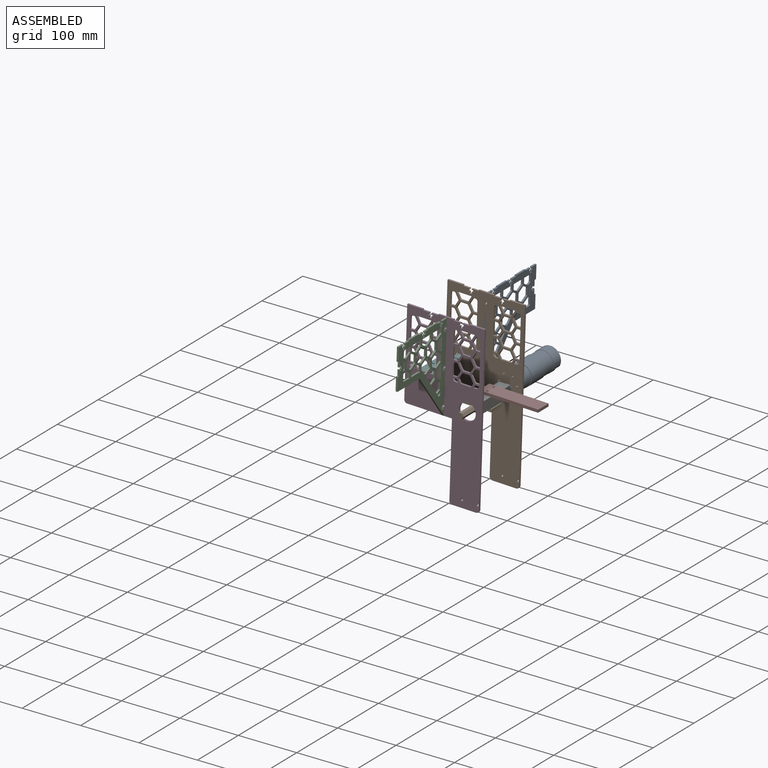
[diagram: assembled view]
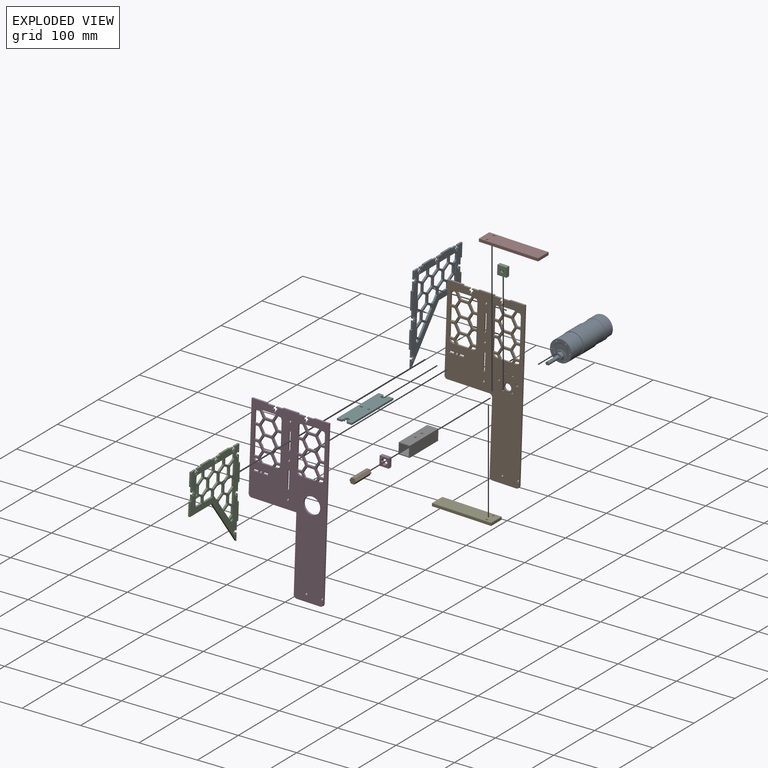
[diagram: exploded view]
GUIDED TOUR — MATED ASSEMBLY (Onshape document 5808713bf6ee2d1157445fb9, AutoMate assembly 5808713bf6ee2d1157445fb9_53c26528586d6e8c29167b55_e1d35214290db0263cb94514_default)

This assembly has 12 components, labeled P0..P11 below (a component is one placed occurrence of a part; the same part can appear more than once), held together by 11 mates. A mate is a constraint between two components; its type names the relative motion it leaves free:
  FASTENED — locks the two components together rigidly (no relative motion).
Axis/direction vectors are unit vectors and 'through' points are millimeter coordinates, both in the assembly's world frame.

MATES
  1. FASTENED "Fastened 5": P0 <-> P2, direction (-0.034, 0.000, -0.999) through (-109.58, 7.23, -27.28) mm
  2. FASTENED "Fastened 4": P4 <-> P6, direction (0.034, 0.000, 0.999) through (-109.82, -35.70, -34.30) mm
  3. FASTENED "Fastened 3": P7 <-> P6, direction (-0.034, 0.000, -0.999) through (-109.16, -35.70, -15.26) mm
  4. FASTENED "Fastened 10": P5 <-> P11, direction (0.034, 0.000, 0.999) through (-205.72, -83.37, 5.54) mm
  5. FASTENED "Fastened 7": P1 <-> P3, direction (0.000, 1.000, 0.000) through (-109.49, -62.62, -24.78) mm
  6. FASTENED "Fastened 2": P3 <-> P6, direction (0.000, -1.000, 0.000) through (-109.49, -62.62, -24.78) mm
  7. FASTENED "Fastened 8": P8 <-> P9, direction (-0.999, 0.000, 0.034) through (-149.49, 15.05, 64.98) mm
  8. FASTENED "Fastened 6": P0 <-> P9, direction (0.000, -1.000, 0.000) through (-109.49, 18.23, -24.78) mm
  9. FASTENED "Top Supp": P11 <-> P10, direction (0.000, 1.000, 0.000) through (-149.47, -80.20, 19.23) mm
  10. FASTENED "Fastened 9": P5 <-> P9, direction (-0.034, 0.000, -0.999) through (-205.83, 18.23, 2.36) mm
  11. FASTENED "Fastened 1": P2 <-> P6, direction (0.000, 1.000, 0.000) through (-109.49, 7.23, -24.78) mm

ASSEMBLY ORDER
  1. P9 — the base component [order verified]
  2. P2 [order verified]
  3. P4 [order verified]
  4. P6 [order verified]
  5. P5 [order verified]
  6. P8 [order verified]
  7. P0 [order verified]
  8. P3 [order verified]
  9. P1 [order verified]
  10. P7 [order verified]
  11. P11 [order verified]
  12. P10 [order verified]
(P0 verified with a relaxed clearance tolerance: the source model stores slight part interference there.)
Order-tag legend:
  [order verified] — this step's position reverses a verified removal order: the component was checked to insert without passing through the ones already placed.

Of the 12 components, 1 carries the full construction recipe — the FeatureScript program that regenerates the part's solid from scratch; the rest are supplied as boundary geometry only.
Each toured component is shown spotlighted twice — in the assembled view, then in the exploded view, where a leader line traces a displaced component back to its assembled socket (saturated green if recipe-attached, orange if geometry-only; every other component desaturated gray) — followed by its recipe or geometry summary and the mates that hold it.
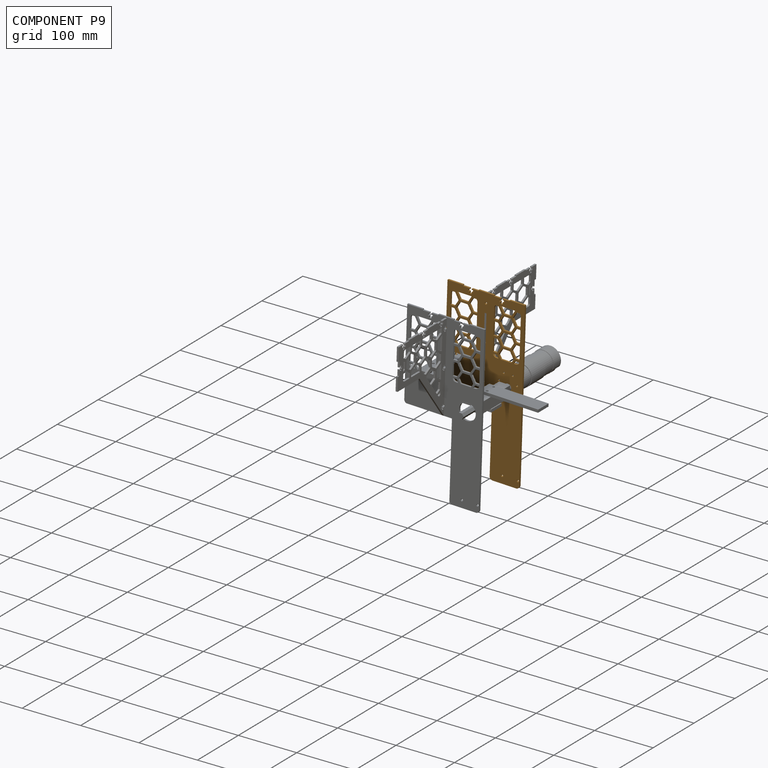
[diagram: component P9 — assembled]
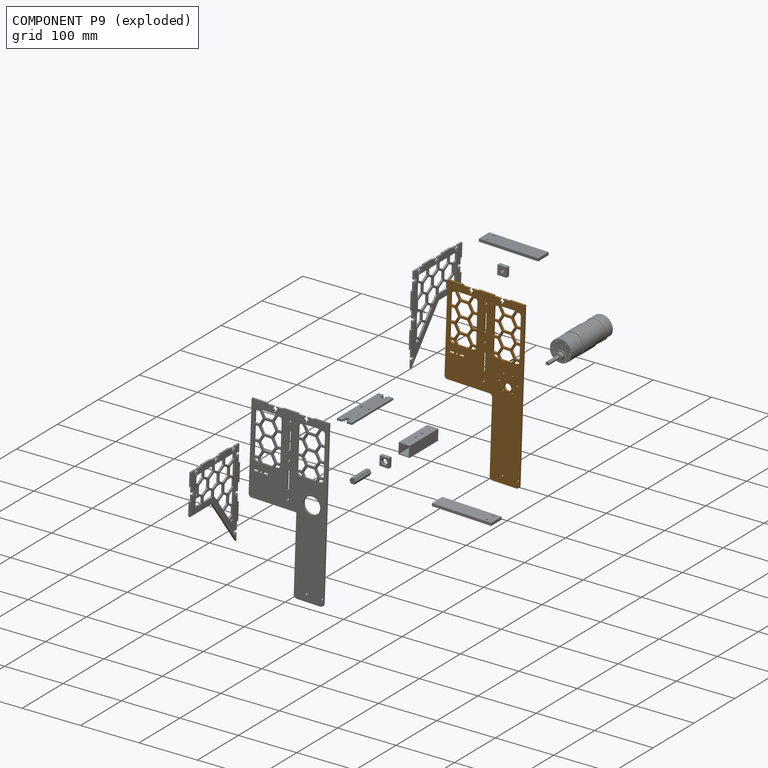
[diagram: component P9 — exploded]
COMPONENT P9 — geometry summary (no construction recipe available for this part):
  bounding box: 287.3 x 132.6 x 3.2 mm
  B-rep topology: 1 solid, 277 faces, 1650 edges
  volume: 66320 mm^3 (55% of its bounding box)
  symmetry: mirror-symmetric across its z mid-plane
Held by: FASTENED mate "Fastened 8" to P8; FASTENED mate "Fastened 6" to P0; FASTENED mate "Fastened 9" to P5.
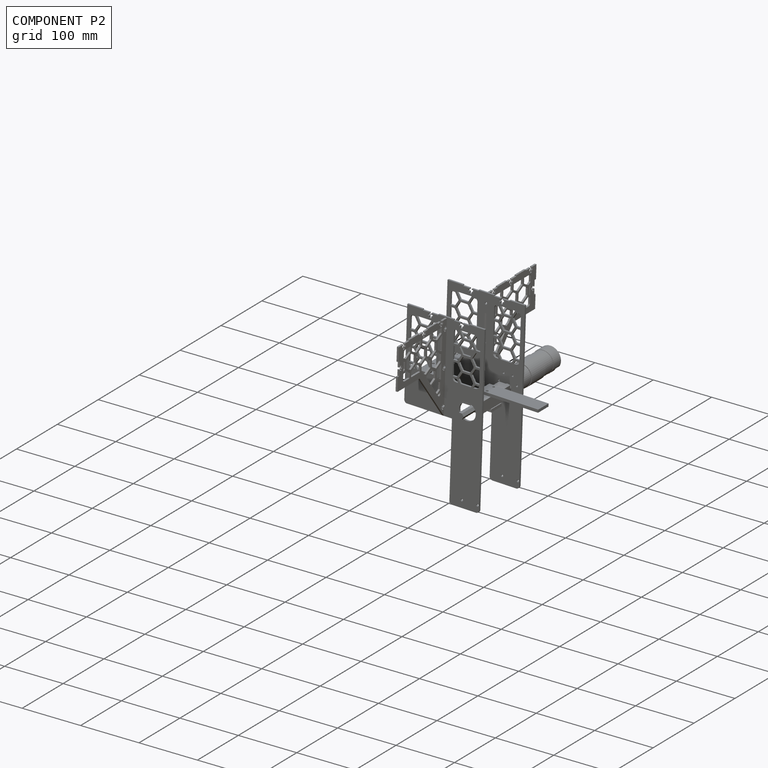
[diagram: component P2 — assembled]
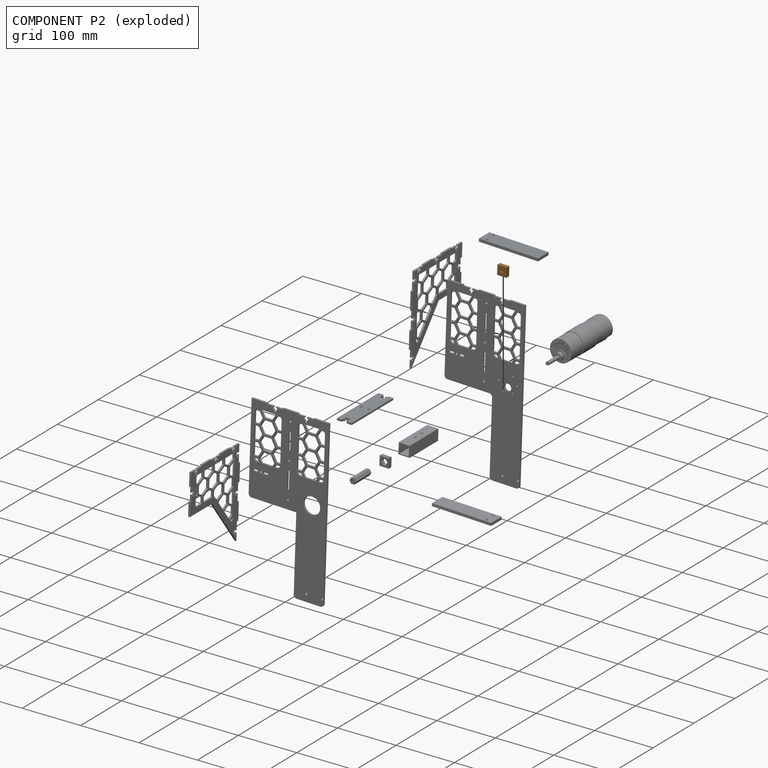
[diagram: component P2 — exploded]
COMPONENT P2 — geometry summary (no construction recipe available for this part):
  bounding box: 16.0 x 16.0 x 6.4 mm
  B-rep topology: 1 solid, 8 faces, 36 edges
  volume: 1448 mm^3 (89% of its bounding box)
  symmetry: 2-fold rotationally symmetric about the z axis; mirror-symmetric across its x mid-plane, y mid-plane
Held by: FASTENED mate "Fastened 5" to P0; FASTENED mate "Fastened 1" to P6.
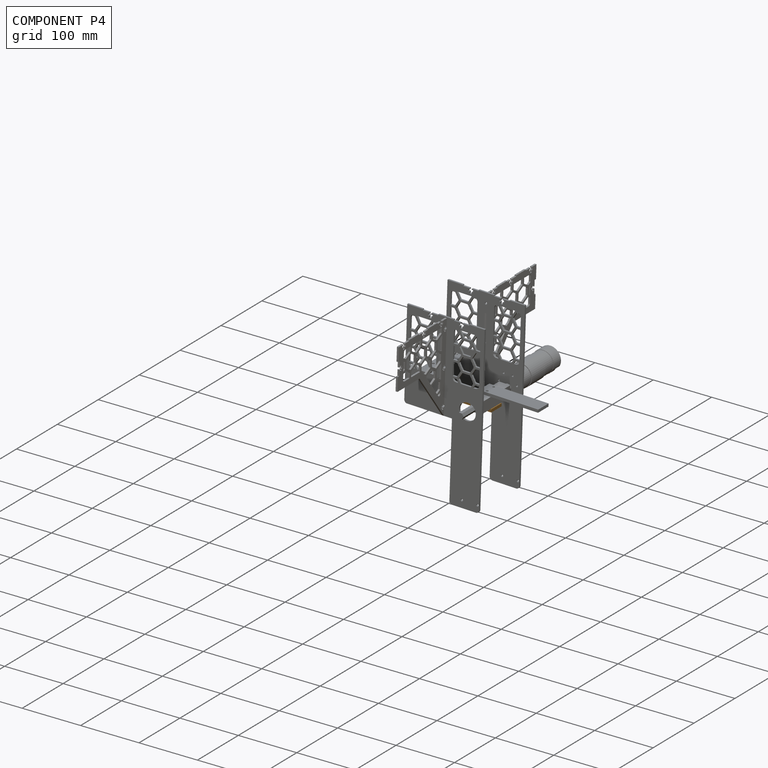
[diagram: component P4 — assembled]
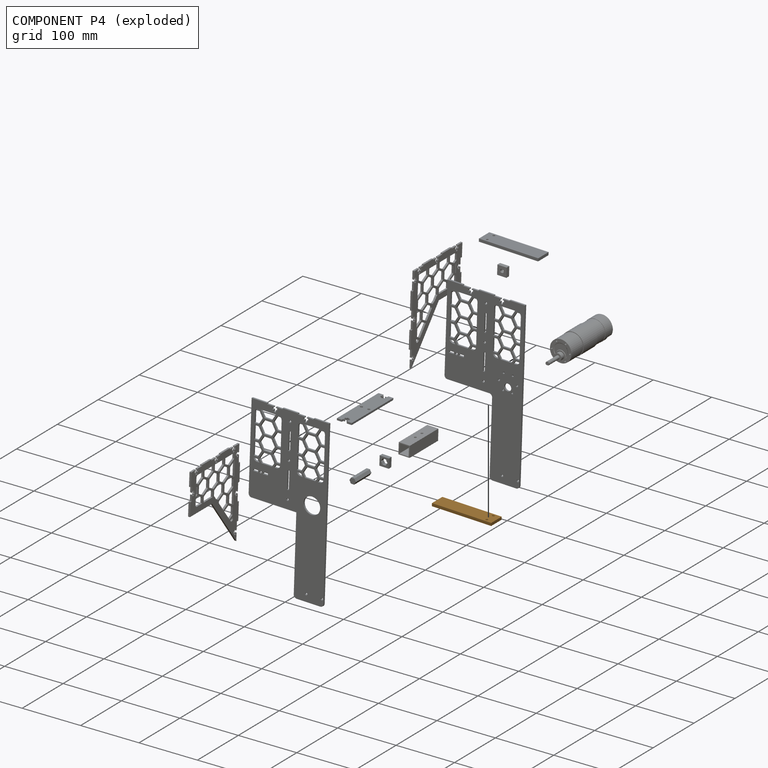
[diagram: component P4 — exploded]
COMPONENT P4 — geometry summary (no construction recipe available for this part):
  bounding box: 101.6 x 25.4 x 4.8 mm
  B-rep topology: 1 solid, 8 faces, 36 edges
  volume: 12350 mm^3 (99% of its bounding box)
  symmetry: 2-fold rotationally symmetric about the y axis; mirror-symmetric across its x mid-plane, z mid-plane
Held by: FASTENED mate "Fastened 4" to P6.
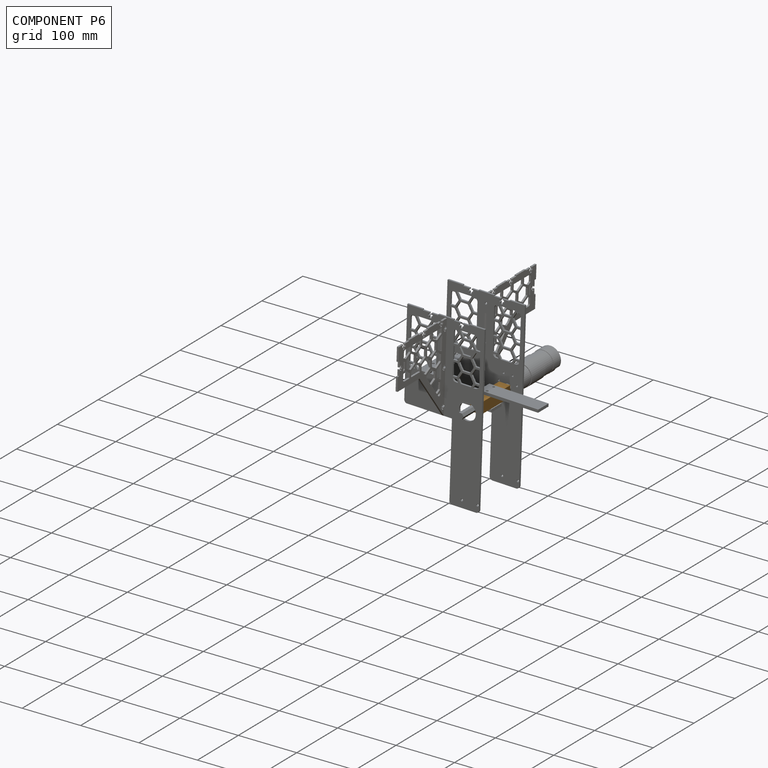
[diagram: component P6 — assembled]
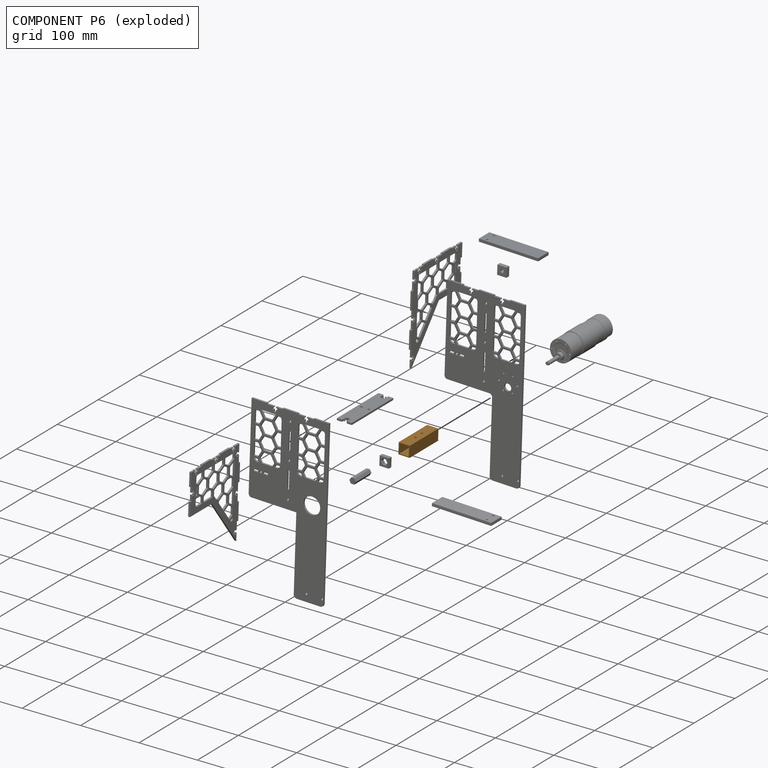
[diagram: component P6 — exploded]
COMPONENT P6 — geometry summary (no construction recipe available for this part):
  bounding box: 69.9 x 19.1 x 19.1 mm
  B-rep topology: 1 solid, 14 faces, 72 edges
  volume: 7453 mm^3 (29% of its bounding box)
  symmetry: 2-fold rotationally symmetric about the x axis; 2-fold rotationally symmetric about the y axis; 2-fold rotationally symmetric about the z axis; mirror-symmetric across its x mid-plane, y mid-plane, z mid-plane
Held by: FASTENED mate "Fastened 4" to P4; FASTENED mate "Fastened 3" to P7; FASTENED mate "Fastened 2" to P3; FASTENED mate "Fastened 1" to P2.
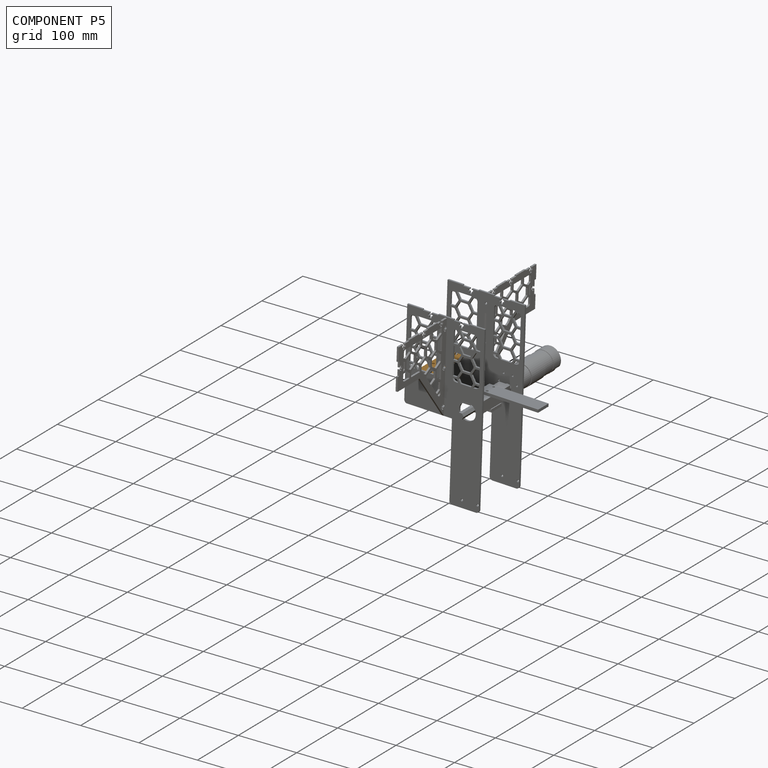
[diagram: component P5 — assembled]
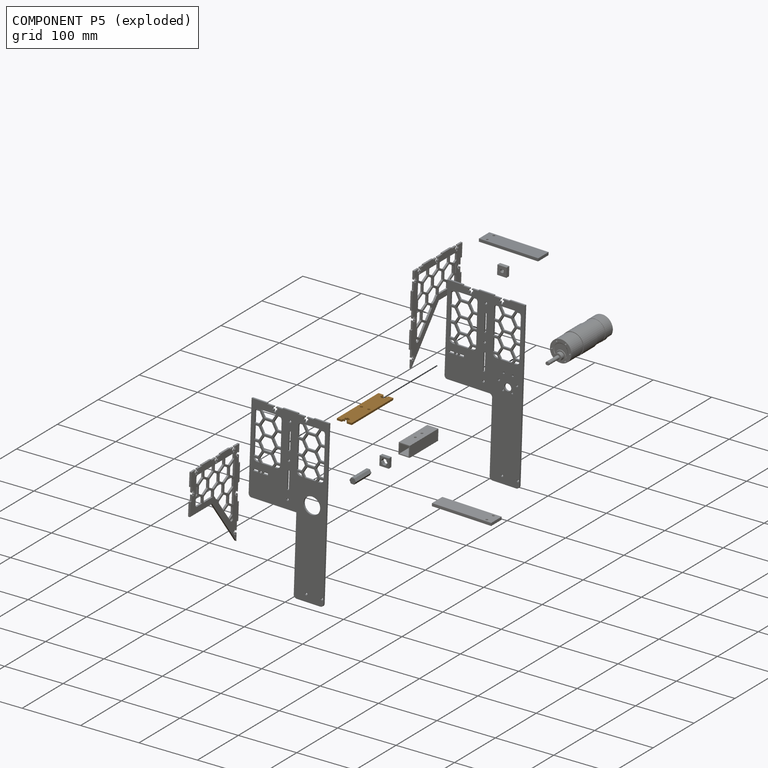
[diagram: component P5 — exploded]
COMPONENT P5 — geometry summary (no construction recipe available for this part):
  bounding box: 101.6 x 25.4 x 3.2 mm
  B-rep topology: 1 solid, 40 faces, 232 edges
  volume: 7673 mm^3 (94% of its bounding box)
  symmetry: 2-fold rotationally symmetric about the x axis; 2-fold rotationally symmetric about the y axis; 2-fold rotationally symmetric about the z axis; mirror-symmetric across its x mid-plane, y mid-plane, z mid-plane
Held by: FASTENED mate "Fastened 10" to P11; FASTENED mate "Fastened 9" to P9.
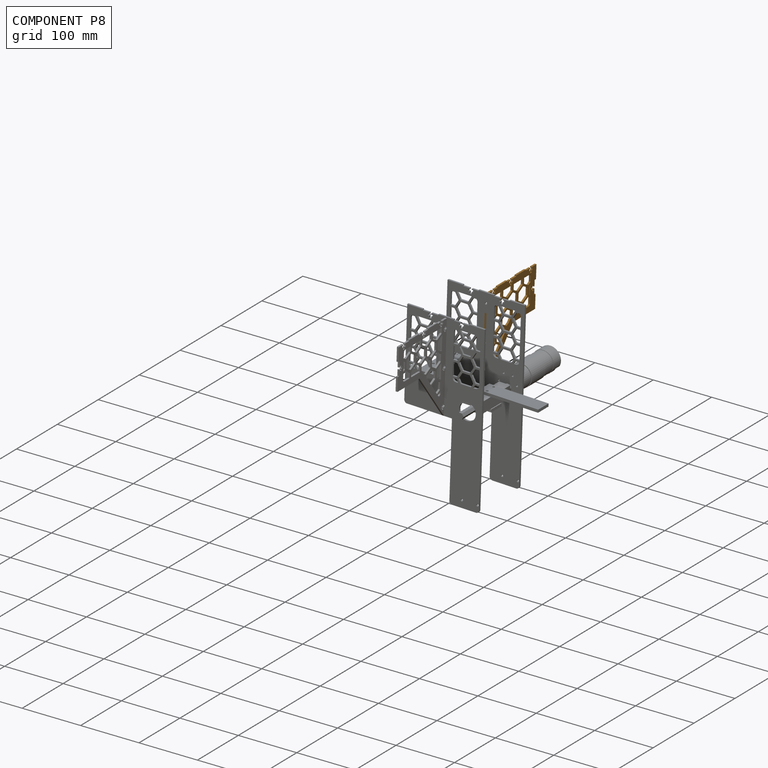
[diagram: component P8 — assembled]
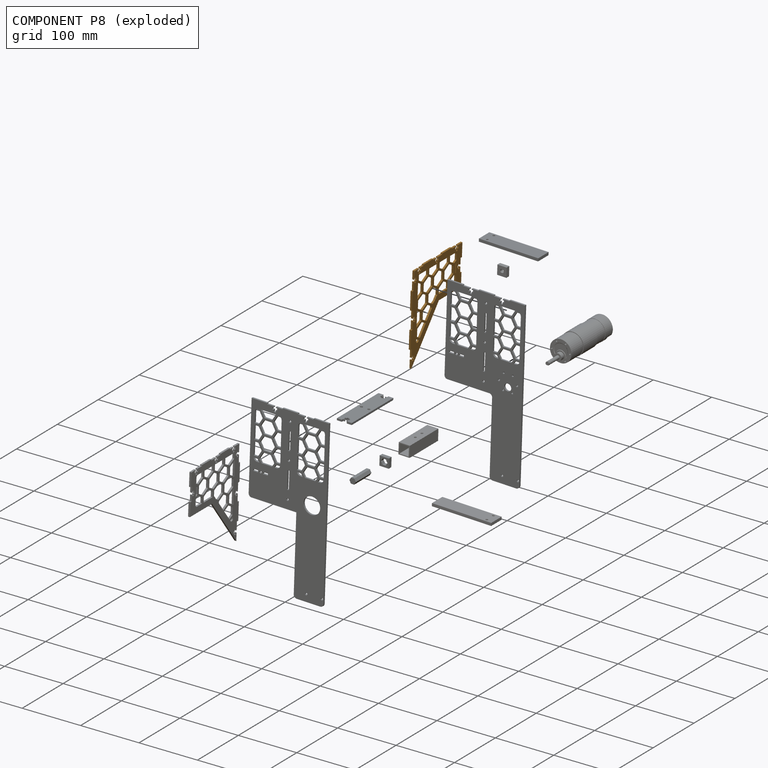
[diagram: component P8 — exploded]
COMPONENT P8 — geometry summary (no construction recipe available for this part):
  bounding box: 154.0 x 120.7 x 3.2 mm
  B-rep topology: 1 solid, 266 faces, 1584 edges
  volume: 19031 mm^3 (32% of its bounding box)
  symmetry: mirror-symmetric across its x mid-plane
Held by: FASTENED mate "Fastened 8" to P9.
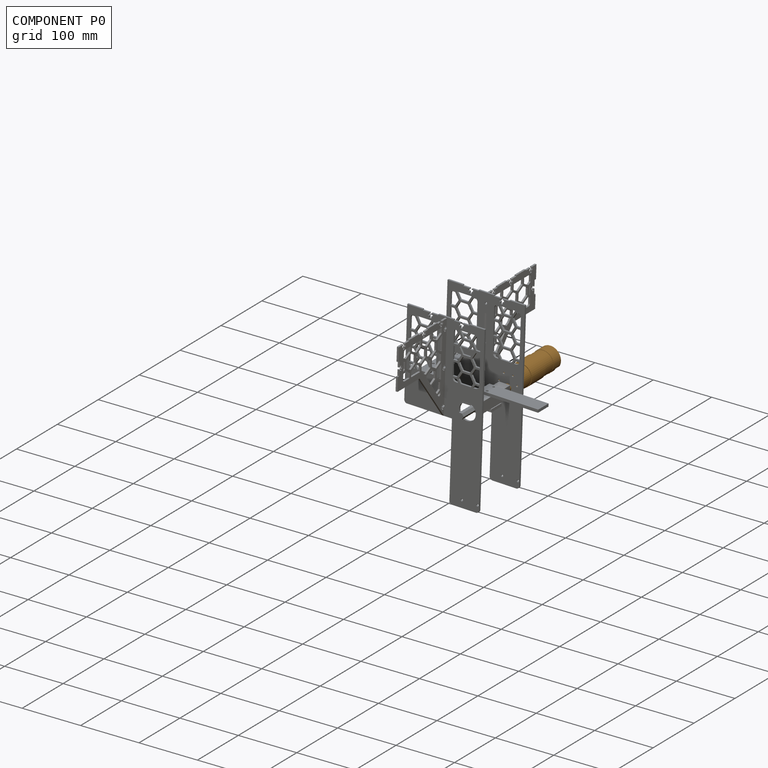
[diagram: component P0 — assembled]
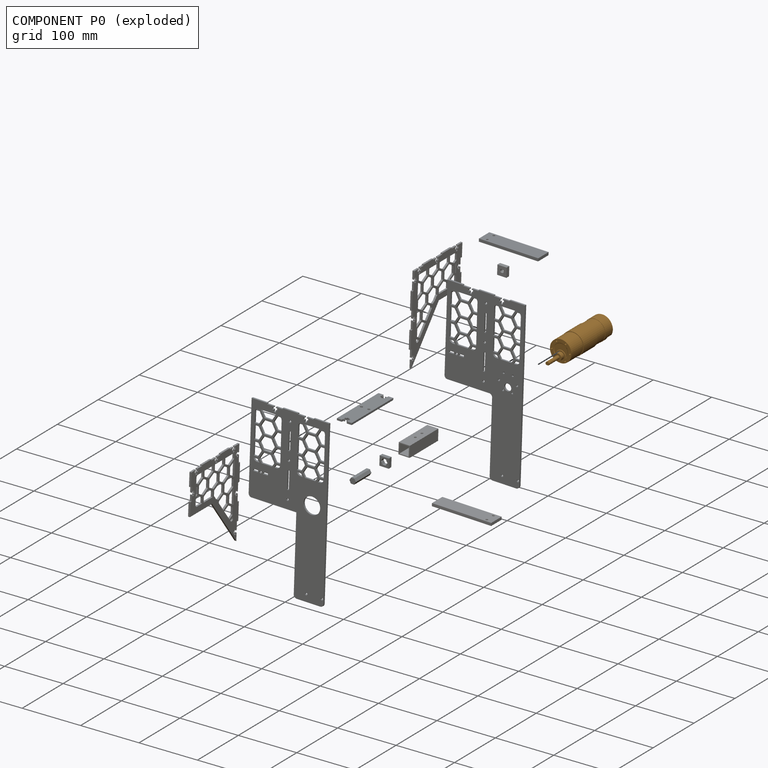
[diagram: component P0 — exploded]
COMPONENT P0 — geometry summary (no construction recipe available for this part):
  bounding box: 133.7 x 38.0 x 38.0 mm
  B-rep topology: 1 solid, 327 faces, 1706 edges
  volume: 108105 mm^3 (56% of its bounding box)
  symmetry: mirror-symmetric across its x mid-plane
Held by: FASTENED mate "Fastened 5" to P2; FASTENED mate "Fastened 6" to P9.
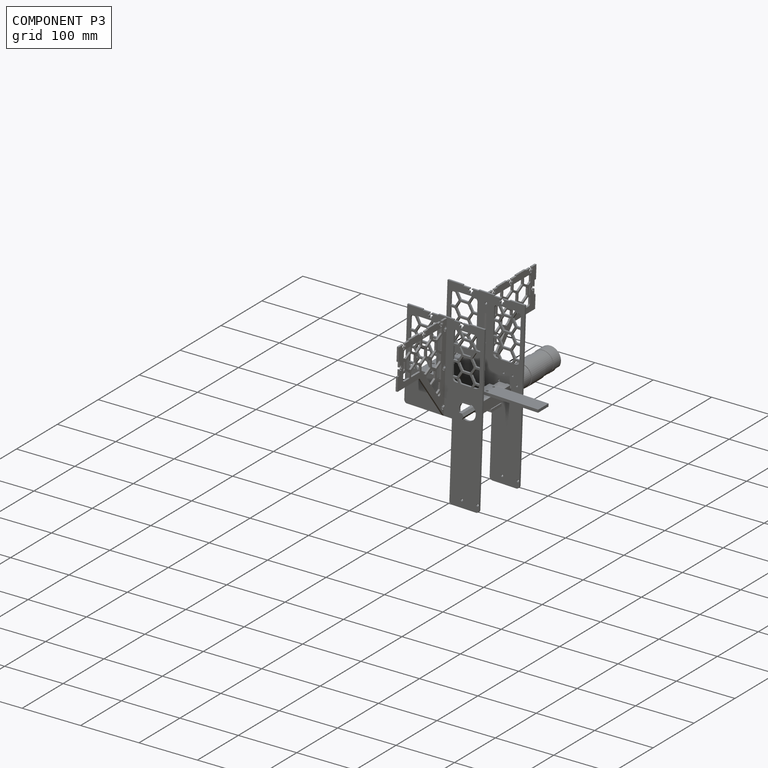
[diagram: component P3 — assembled]
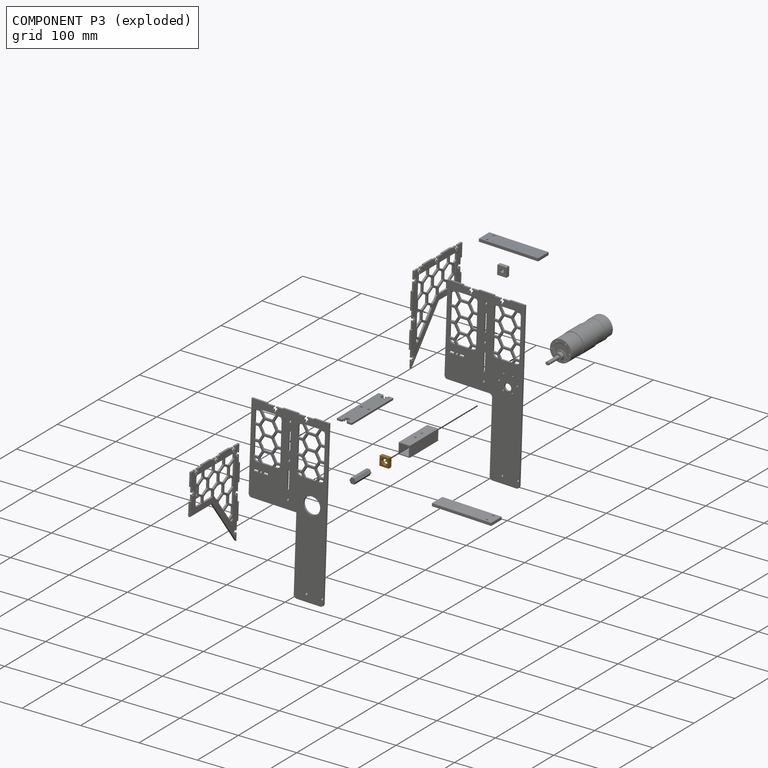
[diagram: component P3 — exploded]
COMPONENT P3 — geometry summary (no construction recipe available for this part):
  bounding box: 16.0 x 16.0 x 6.4 mm
  B-rep topology: 1 solid, 12 faces, 60 edges
  volume: 1122 mm^3 (69% of its bounding box)
  symmetry: 2-fold rotationally symmetric about the x axis; 2-fold rotationally symmetric about the y axis; 2-fold rotationally symmetric about the z axis; mirror-symmetric across its x mid-plane, y mid-plane, z mid-plane
Held by: FASTENED mate "Fastened 7" to P1; FASTENED mate "Fastened 2" to P6.
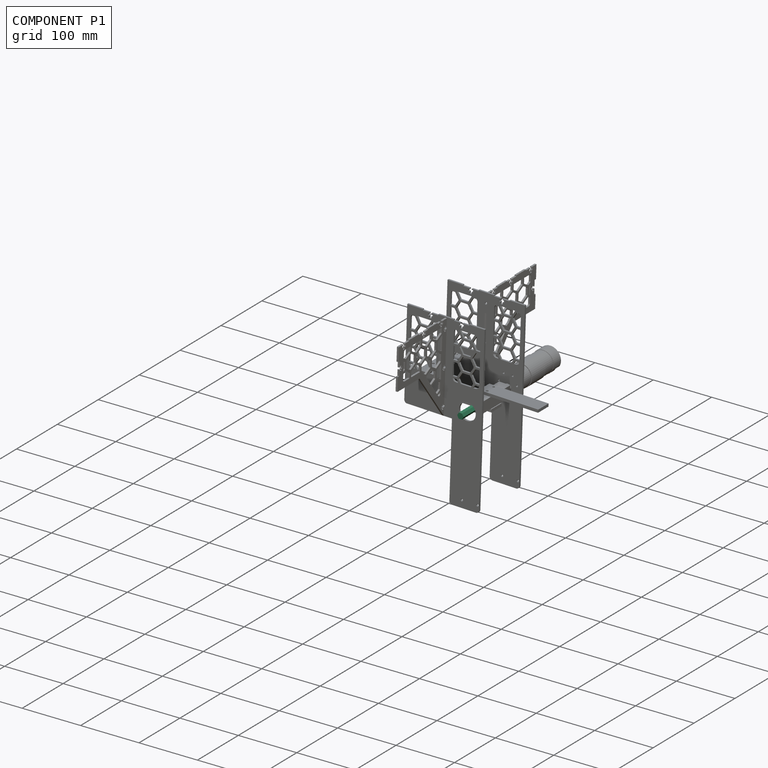
[diagram: component P1 — assembled]
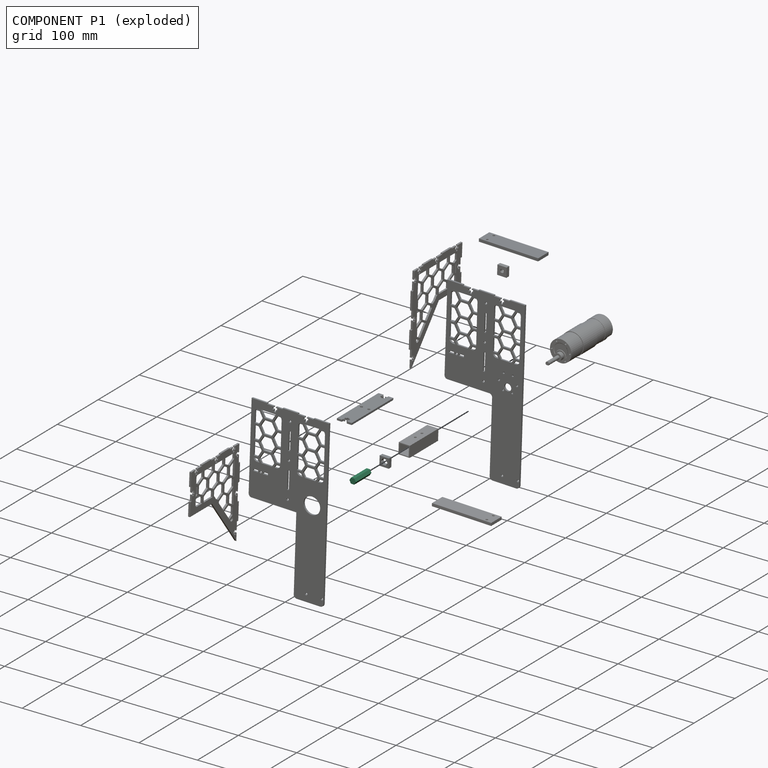
[diagram: component P1 — exploded]
COMPONENT P1 — recipe-attached (CADFS 00243370, mesh-verified: the recipe's output STEP matches this component's geometry to below the mesh-comparison resolution (tessellation chordal tolerance ~0.0612 mm)).
Held by: FASTENED mate "Fastened 7" to P3.
Construction recipe (FeatureScript — the CAD program that rebuilds this solid; sketch coordinates are in the units given by the * unit suffixes, e.g. mm):

FeatureScript 1540;
import(path : "onshape/std/geometry.fs", version : "1540.0");
import(path : "onshape/std/common.fs", version : "1540.0");
const mm = millimeter;
const VERTEX = EntityType.VERTEX;
const EDGE = EntityType.EDGE;
const FACE = EntityType.FACE;
const BODY = EntityType.BODY;
function v(x, y){return vector(x, y);}
function OD(order){return orderDisambiguation(order);}
function OSD(set){return originalSetDisambiguation(set);}
function TD(topology){return topologyDisambiguation(topology);}
function TDD(query){return trueDependencyDisambiguation(query);}
function sQuery(a, b, c) {return sketchEntityQuery(a, b, c);}

annotation { "Feature Type Name" : "Feature", "Feature Type Description" : "" }
export const myFeature = defineFeature(function(context is Context, id is Id, definition is map)
    precondition{}
    {
        {
            var Q0;
            Q0=qCreatedBy(makeId("Front.planeOp"),FACE);
            var sketch = newSketch(context, id + "F0", { "sketchPlane" : qUnion([Q0])});
            skCircle(sketch, "E0.cCircle", {"center": v(0, 0) * mm, "radius": 4.76 * mm, "construction": true});
            skLineSegment(sketch, "E0.0", {"start": v(-2.75, 4.76) * mm, "end": v(2.75, 4.76) * mm});
            skLineSegment(sketch, "E0.1", {"start": v(2.75, 4.76) * mm, "end": v(5.5, 0) * mm});
            skLineSegment(sketch, "E0.2", {"start": v(5.5, 0) * mm, "end": v(2.75, -4.76) * mm});
            skLineSegment(sketch, "E0.3", {"start": v(2.75, -4.76) * mm, "end": v(-2.75, -4.76) * mm});
            skLineSegment(sketch, "E0.4", {"start": v(-2.75, -4.76) * mm, "end": v(-5.5, 0) * mm});
            skLineSegment(sketch, "E0.5", {"start": v(-5.5, 0) * mm, "end": v(-2.75, 4.76) * mm});
            skPoint(sketch, "E0.0.midPoint", {"position": v(0, 4.76) * mm});
            skSolve(sketch);
        }
        {
            var Q0;
            Q0 = qSketchRegion(id + "F0", true);
            extrude(context, id + "F1", {"entities" : qUnion([Q0]), "depth" : 38.1 * mm});
        }
    });
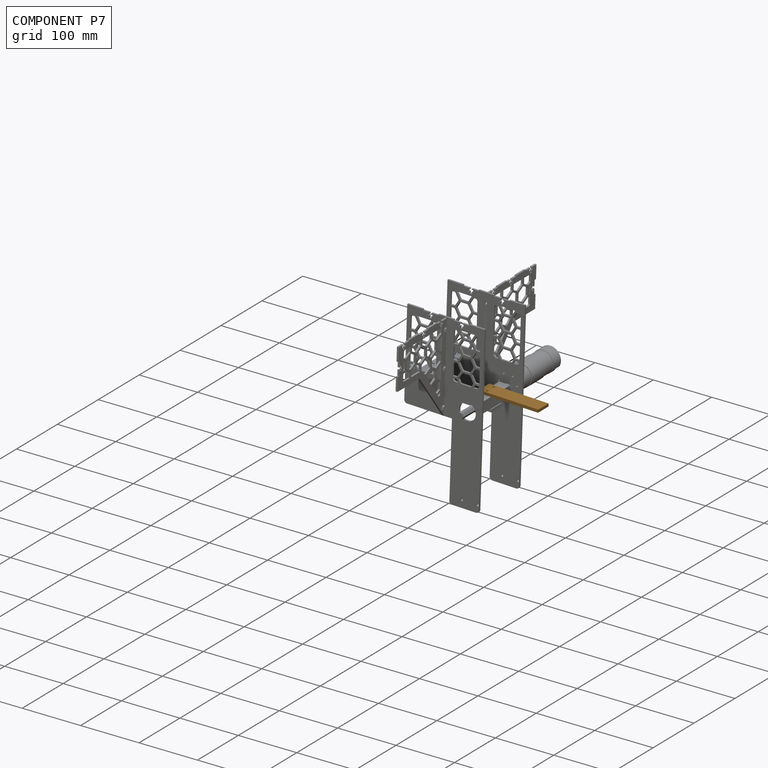
[diagram: component P7 — assembled]
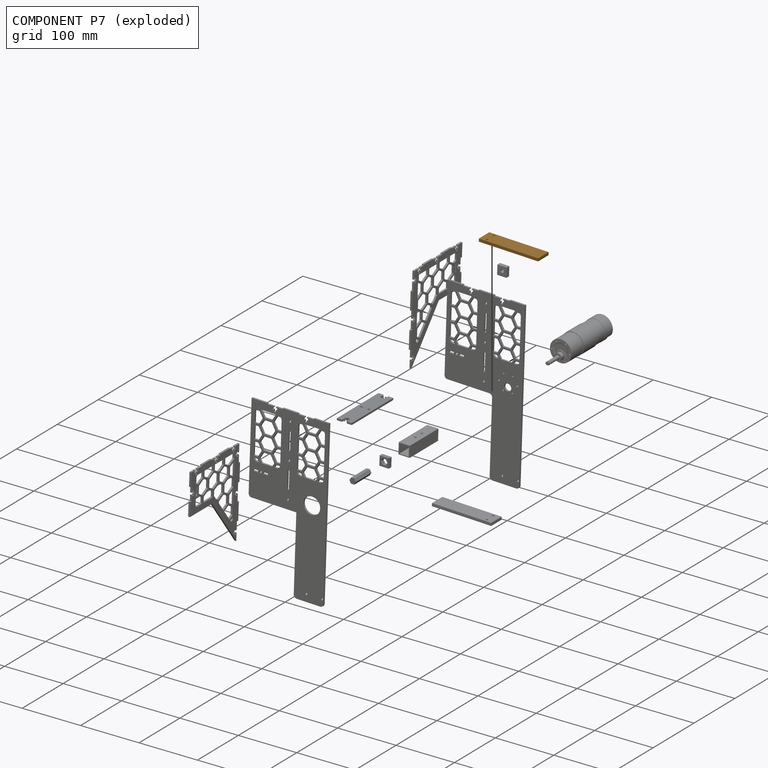
[diagram: component P7 — exploded]
COMPONENT P7 — geometry summary (no construction recipe available for this part):
  bounding box: 101.6 x 25.4 x 4.8 mm
  B-rep topology: 1 solid, 8 faces, 36 edges
  volume: 12350 mm^3 (99% of its bounding box)
  symmetry: 2-fold rotationally symmetric about the y axis; mirror-symmetric across its x mid-plane, z mid-plane
Held by: FASTENED mate "Fastened 3" to P6.
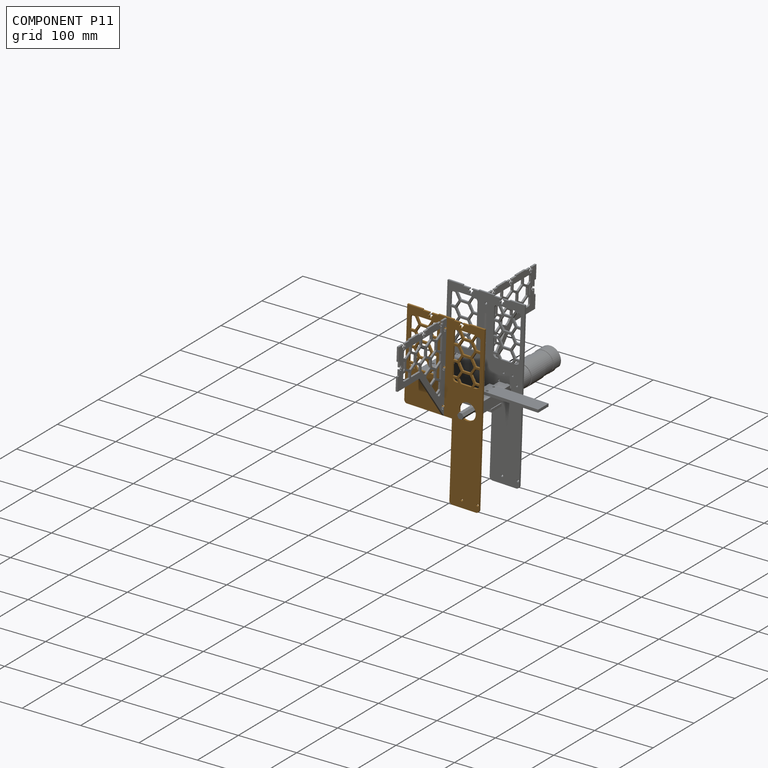
[diagram: component P11 — assembled]
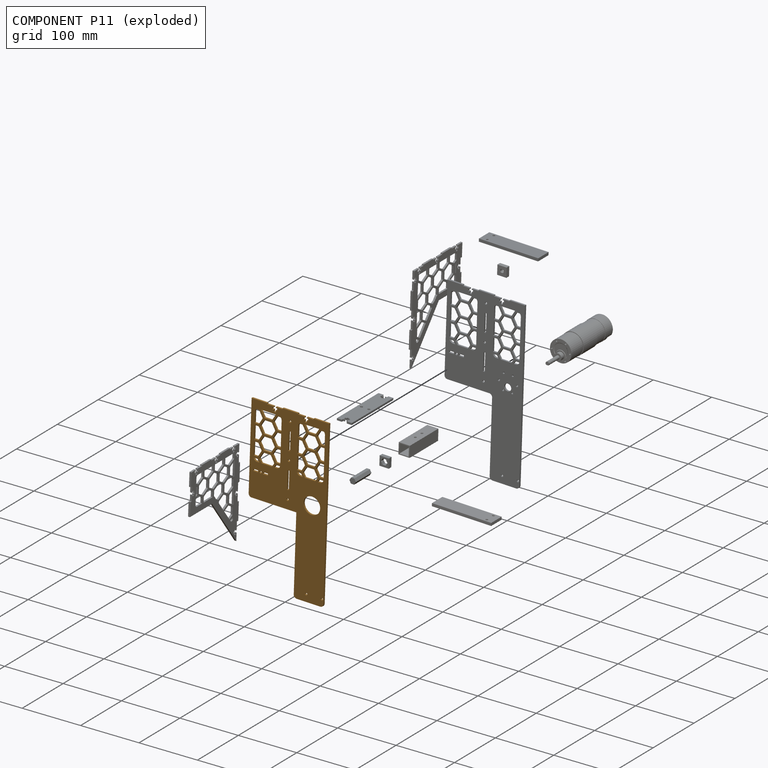
[diagram: component P11 — exploded]
COMPONENT P11 — geometry summary (no construction recipe available for this part):
  bounding box: 287.3 x 132.6 x 3.2 mm
  B-rep topology: 1 solid, 270 faces, 1608 edges
  volume: 64788 mm^3 (54% of its bounding box)
  symmetry: mirror-symmetric across its z mid-plane
Held by: FASTENED mate "Fastened 10" to P5; FASTENED mate "Top Supp" to P10.
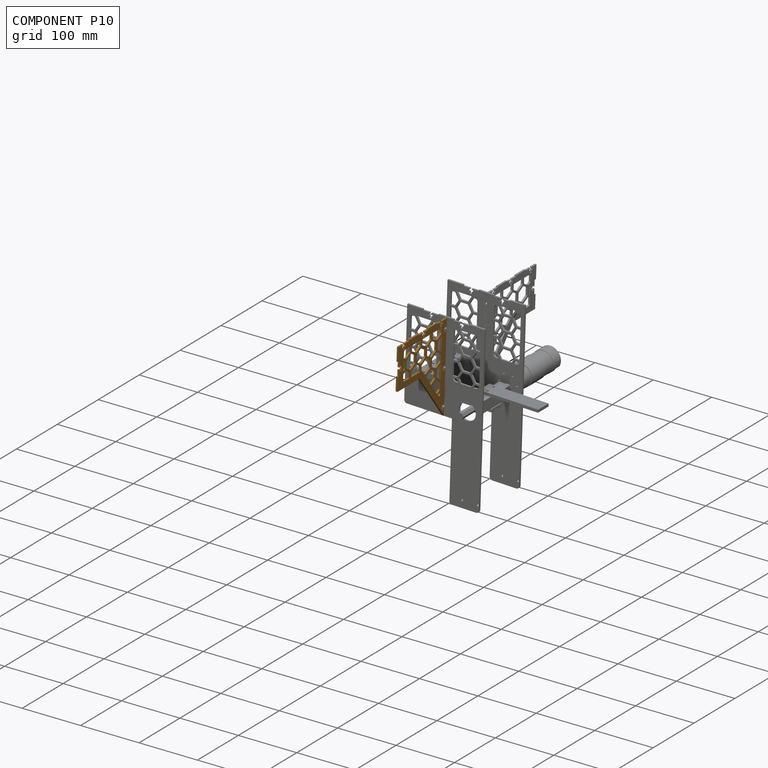
[diagram: component P10 — assembled]
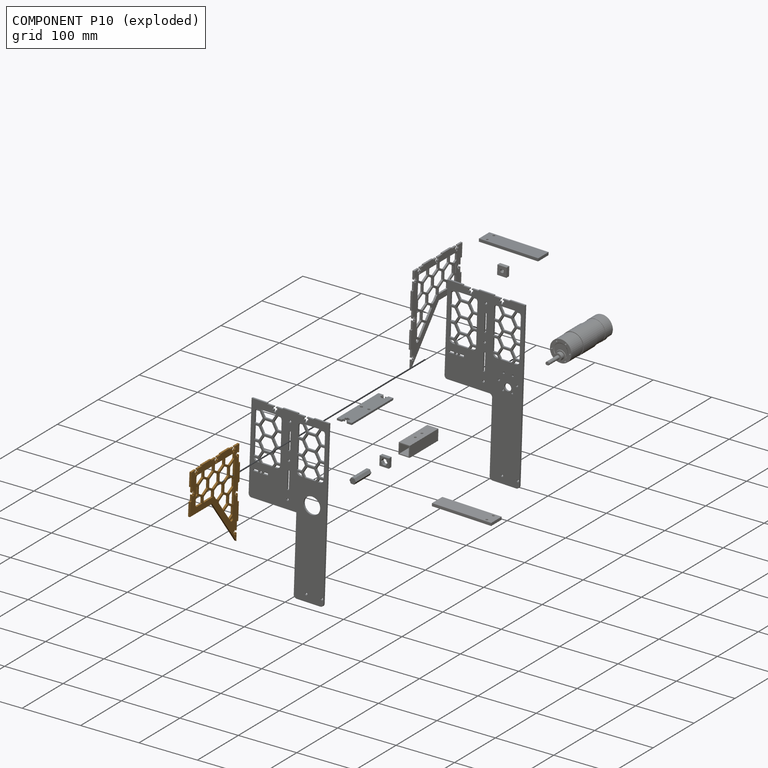
[diagram: component P10 — exploded]
COMPONENT P10 — geometry summary (no construction recipe available for this part):
  bounding box: 154.0 x 120.7 x 3.2 mm
  B-rep topology: 1 solid, 266 faces, 1584 edges
  volume: 19031 mm^3 (32% of its bounding box)
  symmetry: mirror-symmetric across its x mid-plane
Held by: FASTENED mate "Top Supp" to P11.
PROVENANCE & LICENSES
Assembly (occurrences, transforms, mates, per-part STEP geometry): AutoMate dataset, Zenodo record 7776208, CC0.
Construction recipes: CADFS (HuggingFace VladPyatov/CADFS, CC-BY-4.0, layered over the ABC dataset), FeatureScript reconstruction programs keyed by ABC model id.
Join: ABC meta listings map ABC model id -> Onshape documentId; within a shared document, parts are matched by geometric signature (bounding-box dims + volume at 0.1% relative tolerance, exact B-rep face/solid counts).
Verification: 1 of this assembly's 12 components carries a recipe attachment, and every attachment is mesh-verified: the CADFS STEP and the AutoMate member STEP were compared as meshes in their shared local frame (symmetric sampled-point-to-mesh distance); worst across the 1 attachment: below the mesh-comparison resolution (tessellation chordal tolerance ~0.0612 mm) on a 41 mm part.
Renders: orthographic iso camera (az 35 / el 25); the floor grid conveys scale (grid pitch printed in each image; no ruler). In the exploded view each component is displaced by its stored offset vector: the offsets alone carry the explosion direction (mate normal/axis signs are not orientation cues and do not encode it), and separation distances are assigned per mate-chain, not proportionally to assembly-order depth.
